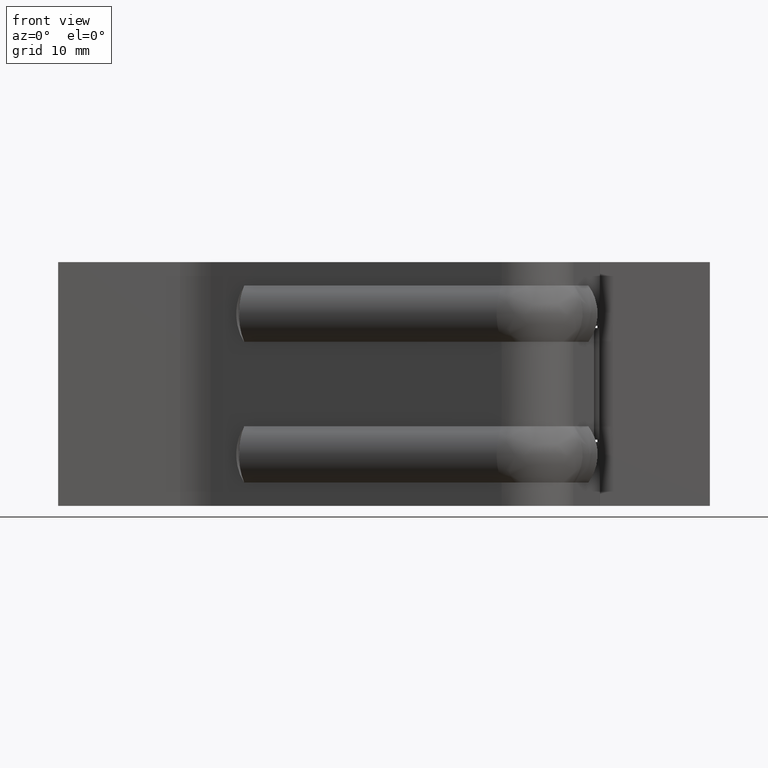
[diagram: clean part render]
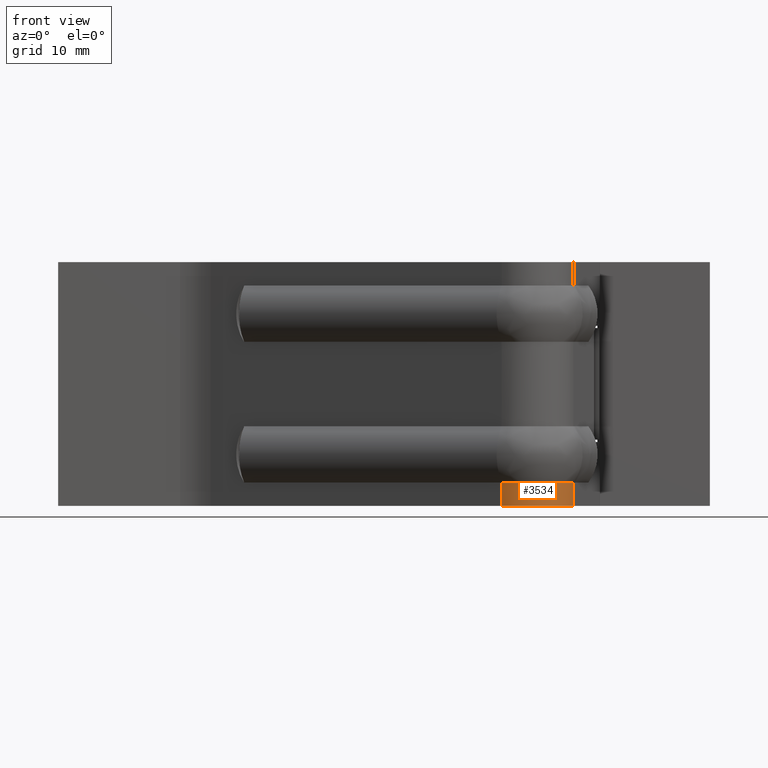
[diagram: same view with one face highlighted and labeled with its STEP entity id]
A machine part, front view. The second image highlights one B-rep face of the part: STEP entity #3534.
In plain terms, the highlighted face is a freeform B-spline surface patch.
Its self-contained STEP definition (entity closure, byte-faithful):
#1373=CARTESIAN_POINT('',(-0.049667633944439,-16.118243081507501,2.499998805872490));
#1374=VERTEX_POINT('',#1373);
#1418=CARTESIAN_POINT('',(-7.703629000000000,-19.438984000000001,2.500032186330990));
#1419=VERTEX_POINT('',#1418);
#1507=CARTESIAN_POINT('',(-7.703629000000000,-19.438984000000001,2.500032186330990));
#1508=CARTESIAN_POINT('',(-7.359115451745856,-19.663498975642302,2.500030778168503));
#1509=CARTESIAN_POINT('',(-6.986786341746100,-19.845285321166941,2.500029376092067));
#1510=CARTESIAN_POINT('',(-6.208957330580192,-20.112434696351780,2.500026581787031));
#1511=CARTESIAN_POINT('',(-5.803505330679619,-20.197781274075879,2.500025189553075));
#1512=CARTESIAN_POINT('',(-4.983984775427646,-20.266869774043439,2.500022412004283));
#1513=CARTESIAN_POINT('',(-4.569966688844062,-20.250607441590120,2.500021026683061));
#1514=CARTESIAN_POINT('',(-3.758390070433969,-20.117450618616068,2.500018259611951));
#1515=CARTESIAN_POINT('',(-3.360881518161559,-20.000564328329890,2.500016877855033));
#1516=CARTESIAN_POINT('',(-2.606403181175072,-19.673227023381060,2.500014114348448));
#1517=CARTESIAN_POINT('',(-2.249479859715356,-19.462796167224880,2.500012732591530));
#1518=CARTESIAN_POINT('',(-1.597795906423546,-18.961104050874940,2.500009965520419));
#1519=CARTESIAN_POINT('',(-1.303075407429995,-18.669873686529691,2.500008580199197));
#1520=CARTESIAN_POINT('',(-0.793656045416267,-18.024212487743231,2.500005802650405));
#1521=CARTESIAN_POINT('',(-0.578988554113784,-17.669821415239561,2.500004410416451));
#1522=CARTESIAN_POINT('',(-0.242687524465555,-16.919296564518479,2.500001616111412));
#1523=CARTESIAN_POINT('',(-0.121074696641922,-16.523209006086759,2.500000214034978));
#1524=CARTESIAN_POINT('',(-0.049667633944439,-16.118243081507501,2.499998805872490));
#1525=B_SPLINE_CURVE_WITH_KNOTS('',3,(#1507,#1508,#1509,#1510,#1511,#1512,#1513,#1514,#1515,#1516,#1517,#1518,#1519,#1520,#1521,#1522,#1523,#1524),.UNSPECIFIED.,.F.,.U.,(4,2,2,2,2,2,2,2,4),(0.0,0.125000000000000,0.250000000000000,0.375000000000000,0.500000000000000,0.625000000000000,0.750000000000000,0.875000000000000,1.0),.UNSPECIFIED.);
#1526=EDGE_CURVE('',#1419,#1374,#1525,.T.);
#3066=CARTESIAN_POINT('',(-0.049669894376328,-16.118250743499200,0.0));
#3067=VERTEX_POINT('',#3066);
#3073=CARTESIAN_POINT('',(-7.703629000000000,-19.438984000000001,0.0));
#3074=VERTEX_POINT('',#3073);
#3075=CARTESIAN_POINT('',(-0.049669894376326,-16.118250743499200,0.0));
#3076=CARTESIAN_POINT('',(-0.516643113572207,-18.766577186058303,0.0));
#3077=CARTESIAN_POINT('',(-2.983644015933933,-19.836905865273391,0.0));
#3078=CARTESIAN_POINT('',(-5.450644918295658,-20.907234544488478,0.0));
#3079=CARTESIAN_POINT('',(-7.703629000000000,-19.438984000000001,0.0));
#3087=(BOUNDED_CURVE()B_SPLINE_CURVE(2,(#3075,#3076,#3077,#3078,#3079),.UNSPECIFIED.,.F.,.U.)B_SPLINE_CURVE_WITH_KNOTS((3,2,3),(0.0,0.500000000000000,1.0),.UNSPECIFIED.)CURVE()GEOMETRIC_REPRESENTATION_ITEM()RATIONAL_B_SPLINE_CURVE((1.0,0.880700856927782,1.0,0.880700856927782,1.0))REPRESENTATION_ITEM(''));
#3088=EDGE_CURVE('',#3067,#3074,#3087,.T.);
#3234=CARTESIAN_POINT('',(-7.703629000000000,-19.438984000000001,0.0));
#3235=CARTESIAN_POINT('',(-7.703629000000000,-19.438984000000001,2.500032186330990));
#3236=QUASI_UNIFORM_CURVE('',1,(#3234,#3235),.UNSPECIFIED.,.F.,.U.);
#3237=EDGE_CURVE('',#3074,#1419,#3236,.T.);
#3510=CARTESIAN_POINT('',(-0.016484209364916,-15.902640838305970,-0.062500804658275));
#3511=CARTESIAN_POINT('',(-0.016484209364916,-15.902640838305970,2.564095511105722));
#3512=CARTESIAN_POINT('',(-1.124437312077144,-24.318336982427958,-0.062500804658275));
#3513=CARTESIAN_POINT('',(-1.124437312077144,-24.318336982427958,2.564095511105723));
#3514=CARTESIAN_POINT('',(-7.947824686046603,-19.269288912469278,-0.062500804658275));
#3515=CARTESIAN_POINT('',(-7.947824686046603,-19.269288912469278,2.564095511105722));
#3523=(BOUNDED_SURFACE()B_SPLINE_SURFACE(1,2,((#3510,#3512,#3514),(#3511,#3513,#3515)),.UNSPECIFIED.,.F.,.F.,.U.)B_SPLINE_SURFACE_WITH_KNOTS((2,2),(3,3),(0.0,2.626596315763996),(0.0,11.430941747304431),.UNSPECIFIED.)GEOMETRIC_REPRESENTATION_ITEM()RATIONAL_B_SPLINE_SURFACE(((1.0,0.507538362960705,1.0),(1.0,0.507538362960705,1.0)))REPRESENTATION_ITEM('')SURFACE());
#3524=ORIENTED_EDGE('',*,*,#1526,.F.);
#3525=ORIENTED_EDGE('',*,*,#3237,.F.);
#3526=ORIENTED_EDGE('',*,*,#3088,.F.);
#3527=CARTESIAN_POINT('',(-0.049669894376328,-16.118250743499200,0.0));
#3528=CARTESIAN_POINT('',(-0.049667633944439,-16.118243081507501,2.499998805872490));
#3529=QUASI_UNIFORM_CURVE('',1,(#3527,#3528),.UNSPECIFIED.,.F.,.U.);
#3530=EDGE_CURVE('',#3067,#1374,#3529,.T.);
#3531=ORIENTED_EDGE('',*,*,#3530,.T.);
#3532=EDGE_LOOP('',(#3524,#3525,#3526,#3531));
#3533=FACE_OUTER_BOUND('',#3532,.T.);
#3534=ADVANCED_FACE('',(#3533),#3523,.T.);